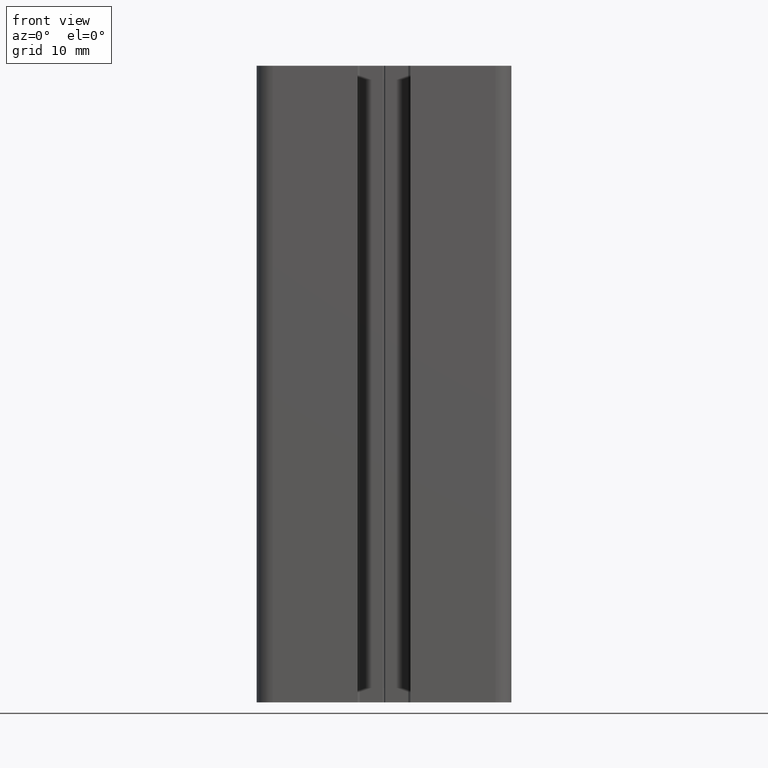
[diagram: clean part render]
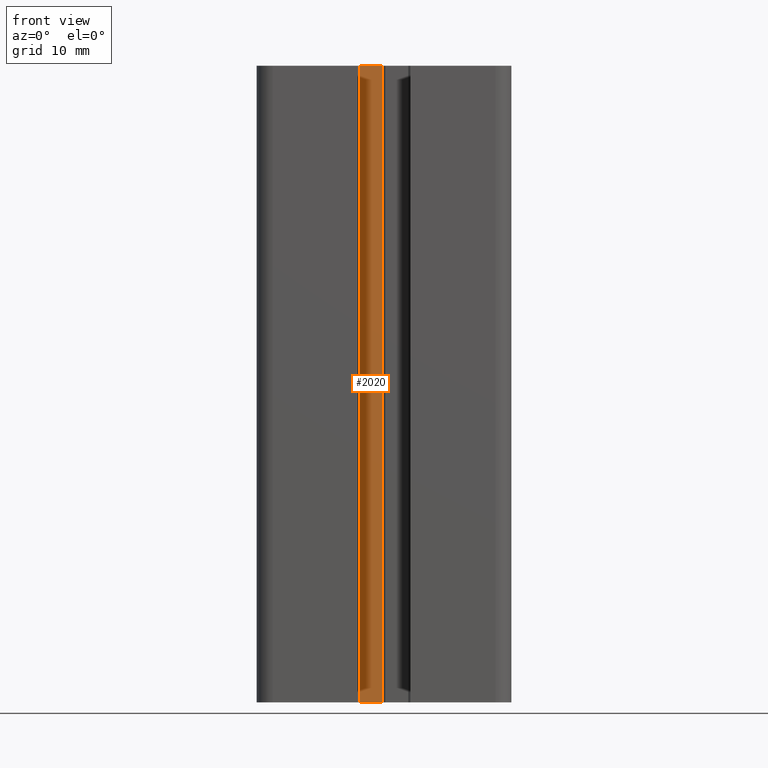
[diagram: same view with one face highlighted and labeled with its STEP entity id]
A machine part, front view. The second image highlights one B-rep face of the part: STEP entity #2020.
In plain terms, the highlighted planar face has unit normal (0, -1, 0).
Its self-contained STEP definition (entity closure, byte-faithful):
#45=PLANE('',#2159);
#128=FACE_OUTER_BOUND('',#232,.T.);
#232=EDGE_LOOP('',(#1485,#1486,#1487,#1488));
#382=LINE('',#3068,#610);
#383=LINE('',#3071,#611);
#384=LINE('',#3073,#612);
#385=LINE('',#3074,#613);
#610=VECTOR('',#2481,100.);
#611=VECTOR('',#2484,3.60000000000005);
#612=VECTOR('',#2485,3.60000000000005);
#613=VECTOR('',#2486,100.);
#911=VERTEX_POINT('',#3064);
#912=VERTEX_POINT('',#3066);
#913=VERTEX_POINT('',#3070);
#914=VERTEX_POINT('',#3072);
#1148=EDGE_CURVE('',#911,#912,#382,.T.);
#1149=EDGE_CURVE('',#913,#911,#383,.T.);
#1150=EDGE_CURVE('',#914,#912,#384,.T.);
#1151=EDGE_CURVE('',#913,#914,#385,.T.);
#1485=ORIENTED_EDGE('',*,*,#1149,.T.);
#1486=ORIENTED_EDGE('',*,*,#1148,.T.);
#1487=ORIENTED_EDGE('',*,*,#1150,.F.);
#1488=ORIENTED_EDGE('',*,*,#1151,.F.);
#2020=ADVANCED_FACE('',(#128),#45,.T.);
#2159=AXIS2_PLACEMENT_3D('',#3069,#2482,#2483);
#2481=DIRECTION('',(0.,0.,1.));
#2482=DIRECTION('center_axis',(0.,-1.,0.));
#2483=DIRECTION('ref_axis',(1.,0.,0.));
#2484=DIRECTION('',(1.,0.,0.));
#2485=DIRECTION('',(1.,0.,0.));
#2486=DIRECTION('',(0.,0.,1.));
#3064=CARTESIAN_POINT('',(-0.200000000000085,-5.49999999999997,0.));
#3066=CARTESIAN_POINT('',(-0.200000000000085,-5.49999999999997,100.));
#3068=CARTESIAN_POINT('',(-0.200000000000085,-5.49999999999997,0.));
#3069=CARTESIAN_POINT('Origin',(-3.80000000000013,-5.49999999999997,0.));
#3070=CARTESIAN_POINT('',(-3.80000000000013,-5.49999999999997,0.));
#3071=CARTESIAN_POINT('',(-3.80000000000013,-5.49999999999997,0.));
#3072=CARTESIAN_POINT('',(-3.80000000000013,-5.49999999999997,100.));
#3073=CARTESIAN_POINT('',(-3.80000000000013,-5.49999999999997,100.));
#3074=CARTESIAN_POINT('',(-3.80000000000013,-5.49999999999997,0.));